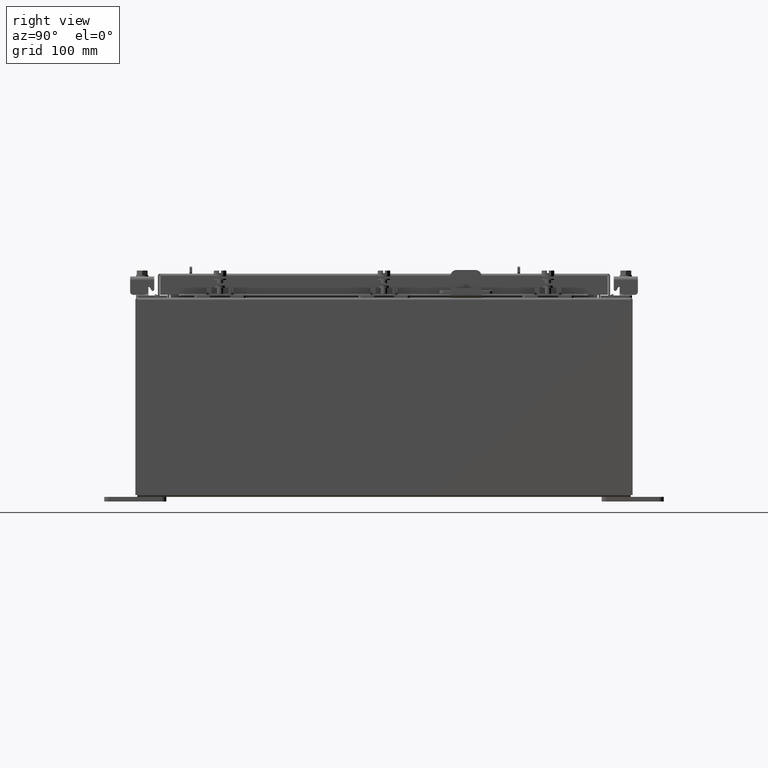
[diagram: clean part render]
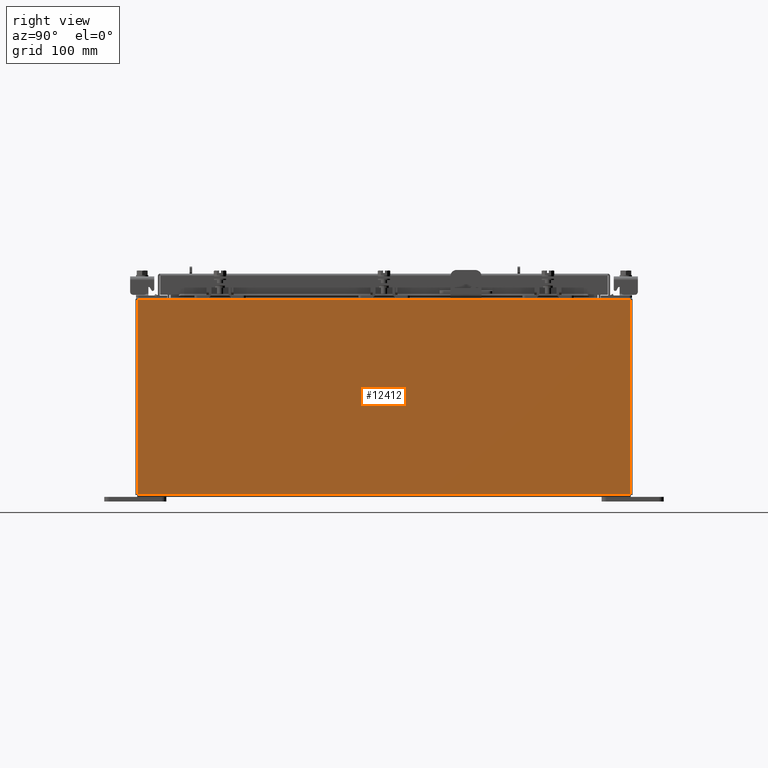
[diagram: same view with one face highlighted and labeled with its STEP entity id]
A machine part, right view. The second image highlights one B-rep face of the part: STEP entity #12412.
In plain terms, the highlighted planar face has unit normal (-1, 0, 0).
Its self-contained STEP definition (entity closure, byte-faithful):
#41 = VECTOR ( 'NONE', #11484, 39.37007874015748100 ) ;
#1348 = CARTESIAN_POINT ( 'NONE',  ( 8.000000000000001800, -9.925300000000001800, 0.01299999999999984800 ) ) ;
#1490 = CARTESIAN_POINT ( 'NONE',  ( 8.000000000000001800, -9.925300000000001800, 0.01299999999999984700 ) ) ;
#1803 = VERTEX_POINT ( 'NONE', #15406 ) ;
#3258 = DIRECTION ( 'NONE',  ( -0.0000000000000000000, -1.000000000000000000, -0.0000000000000000000 ) ) ;
#4477 = CARTESIAN_POINT ( 'NONE',  ( 8.000000000000001800, -9.925300000000001800, -2.783678421777468900E-014 ) ) ;
#4667 = LINE ( 'NONE', #4477, #41 ) ;
#5467 = EDGE_LOOP ( 'NONE', ( #20666, #19109, #8908, #16789 ) ) ;
#5513 = EDGE_CURVE ( 'NONE', #1803, #6731, #19897, .T. ) ;
#5777 = VECTOR ( 'NONE', #7871, 39.37007874015748100 ) ;
#6035 = VECTOR ( 'NONE', #11208, 39.37007874015748100 ) ;
#6343 = DIRECTION ( 'NONE',  ( 3.446996320220386900E-015, 0.0000000000000000000, 1.000000000000000000 ) ) ;
#6731 = VERTEX_POINT ( 'NONE', #19702 ) ;
#7871 = DIRECTION ( 'NONE',  ( -0.0000000000000000000, -1.000000000000000000, -0.0000000000000000000 ) ) ;
#8908 = ORIENTED_EDGE ( 'NONE', *, *, #12562, .F. ) ;
#9460 = CARTESIAN_POINT ( 'NONE',  ( 8.000000000000001800, 9.925299999999998200, -2.783678421777468900E-014 ) ) ;
#9922 = FACE_OUTER_BOUND ( 'NONE', #5467, .T. ) ;
#10397 = LINE ( 'NONE', #18277, #5777 ) ;
#11208 = DIRECTION ( 'NONE',  ( 3.446996320220387700E-015, 0.0000000000000000000, 1.000000000000000000 ) ) ;
#11484 = DIRECTION ( 'NONE',  ( -3.446996320220387700E-015, 0.0000000000000000000, -1.000000000000000000 ) ) ;
#12412 = ADVANCED_FACE ( 'NONE', ( #9922 ), #14970, .F. ) ;
#12538 = VERTEX_POINT ( 'NONE', #1348 ) ;
#12562 = EDGE_CURVE ( 'NONE', #1803, #12538, #12912, .T. ) ;
#12863 = AXIS2_PLACEMENT_3D ( 'NONE', #13222, #16724, #6343 ) ;
#12912 = LINE ( 'NONE', #1490, #21609 ) ;
#13222 = CARTESIAN_POINT ( 'NONE',  ( 8.000000000000001800, 0.0000000000000000000, -2.783678421777468900E-014 ) ) ;
#14528 = EDGE_CURVE ( 'NONE', #6731, #21779, #10397, .T. ) ;
#14627 = EDGE_CURVE ( 'NONE', #21779, #12538, #4667, .T. ) ;
#14780 = CARTESIAN_POINT ( 'NONE',  ( 8.000000000000030200, -9.925300000000001800, 7.837599999999999200 ) ) ;
#14970 = PLANE ( 'NONE',  #12863 ) ;
#15406 = CARTESIAN_POINT ( 'NONE',  ( 8.000000000000001800, 9.925299999999996500, 0.01299999999999984700 ) ) ;
#16724 = DIRECTION ( 'NONE',  ( -1.000000000000000000, 0.0000000000000000000, 3.446996320220386900E-015 ) ) ;
#16789 = ORIENTED_EDGE ( 'NONE', *, *, #5513, .T. ) ;
#18277 = CARTESIAN_POINT ( 'NONE',  ( 8.000000000000030200, 9.925299999999992900, 7.837599999999999200 ) ) ;
#19109 = ORIENTED_EDGE ( 'NONE', *, *, #14627, .T. ) ;
#19702 = CARTESIAN_POINT ( 'NONE',  ( 8.000000000000030200, 9.925299999999991100, 7.837599999999999200 ) ) ;
#19897 = LINE ( 'NONE', #9460, #6035 ) ;
#20666 = ORIENTED_EDGE ( 'NONE', *, *, #14528, .T. ) ;
#21609 = VECTOR ( 'NONE', #3258, 39.37007874015748100 ) ;
#21779 = VERTEX_POINT ( 'NONE', #14780 ) ;